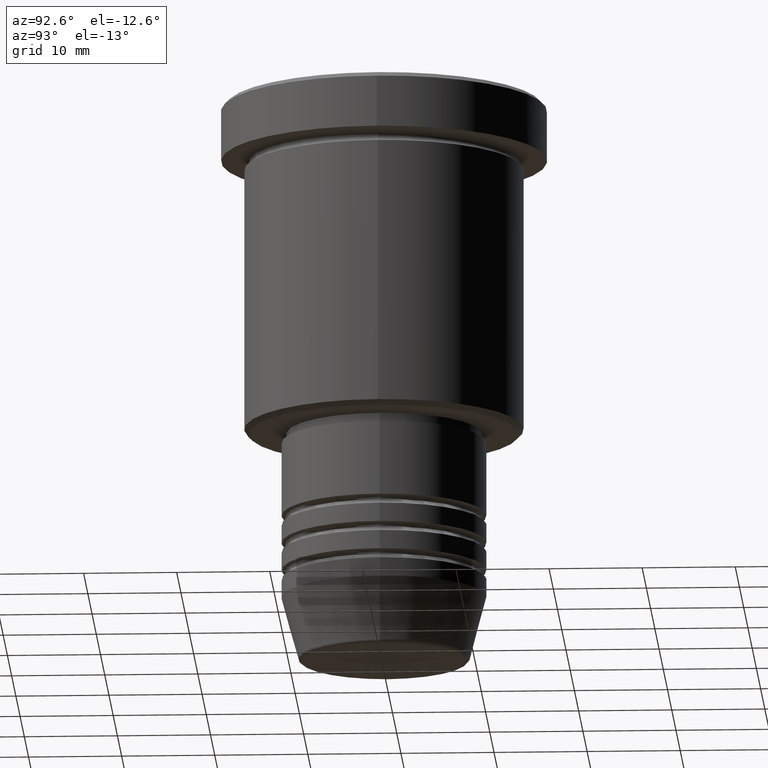
[diagram: clean part render]
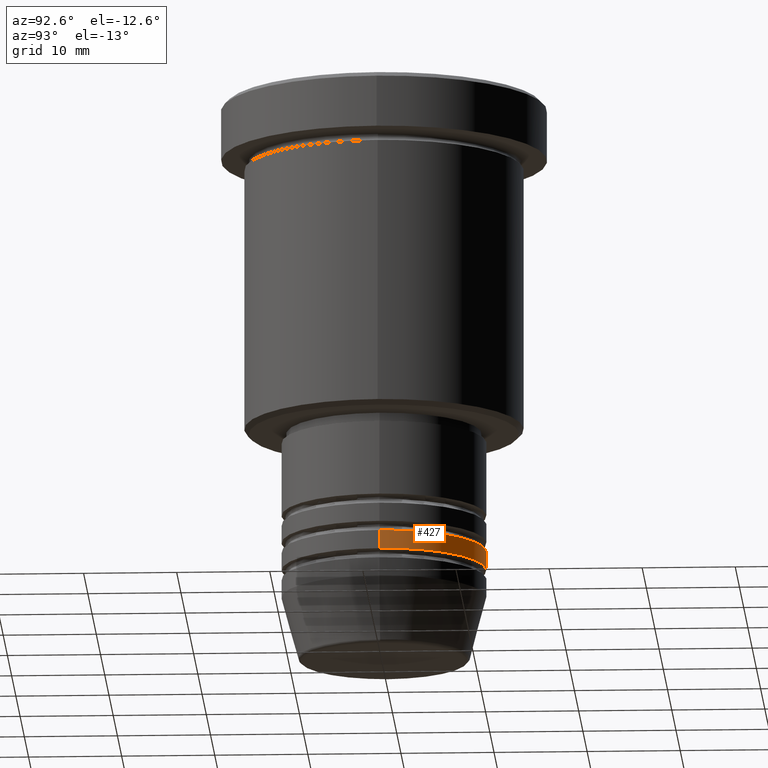
[diagram: same view with one face highlighted and labeled with its STEP entity id]
A machine part, auxiliary view. The second image highlights one B-rep face of the part: STEP entity #427.
In plain terms, the highlighted cylindrical surface (partial cylindrical patch) has radius 11 mm, axis along (-0, -0, 1).
Its self-contained STEP definition (entity closure, byte-faithful):
#66 = DIRECTION ( 'NONE',  ( -0.000000000000000000, -0.000000000000000000, 1.000000000000000000 ) ) ;
#81 = CIRCLE ( 'NONE', #752, 11.00000000000000000 ) ;
#126 = CARTESIAN_POINT ( 'NONE',  ( -11.00000000000000000, 1.347111479062088405E-15, -50.99999999999997868 ) ) ;
#145 = DIRECTION ( 'NONE',  ( 1.000000000000000000, 0.000000000000000000, 0.000000000000000000 ) ) ;
#147 = ORIENTED_EDGE ( 'NONE', *, *, #277, .F. ) ;
#166 = ORIENTED_EDGE ( 'NONE', *, *, #191, .T. ) ;
#191 = EDGE_CURVE ( 'NONE', #822, #572, #729, .T. ) ;
#207 = CARTESIAN_POINT ( 'NONE',  ( 11.00000000000000000, 0.000000000000000000, -50.99999999999997868 ) ) ;
#256 = CARTESIAN_POINT ( 'NONE',  ( 0.000000000000000000, 0.000000000000000000, -48.99999999999997158 ) ) ;
#260 = AXIS2_PLACEMENT_3D ( 'NONE', #918, #593, #1029 ) ;
#277 = EDGE_CURVE ( 'NONE', #969, #572, #293, .T. ) ;
#287 = DIRECTION ( 'NONE',  ( -0.000000000000000000, -0.000000000000000000, 1.000000000000000000 ) ) ;
#293 = CIRCLE ( 'NONE', #487, 11.00000000000000000 ) ;
#353 = VERTEX_POINT ( 'NONE', #207 ) ;
#376 = FACE_OUTER_BOUND ( 'NONE', #483, .T. ) ;
#427 = ADVANCED_FACE ( 'NONE', ( #376 ), #1003, .T. ) ;
#470 = VECTOR ( 'NONE', #1137, 1000.000000000000000 ) ;
#483 = EDGE_LOOP ( 'NONE', ( #892, #166, #147, #599 ) ) ;
#487 = AXIS2_PLACEMENT_3D ( 'NONE', #256, #66, #618 ) ;
#572 = VERTEX_POINT ( 'NONE', #840 ) ;
#593 = DIRECTION ( 'NONE',  ( -0.000000000000000000, -0.000000000000000000, 1.000000000000000000 ) ) ;
#599 = ORIENTED_EDGE ( 'NONE', *, *, #1045, .F. ) ;
#618 = DIRECTION ( 'NONE',  ( 1.000000000000000000, 0.000000000000000000, 0.000000000000000000 ) ) ;
#619 = CARTESIAN_POINT ( 'NONE',  ( 11.00000000000000000, 0.000000000000000000, 0.000000000000000000 ) ) ;
#647 = CARTESIAN_POINT ( 'NONE',  ( 11.00000000000000000, 0.000000000000000000, -48.99999999999997158 ) ) ;
#684 = DIRECTION ( 'NONE',  ( -0.000000000000000000, -0.000000000000000000, 1.000000000000000000 ) ) ;
#729 = LINE ( 'NONE', #1094, #753 ) ;
#752 = AXIS2_PLACEMENT_3D ( 'NONE', #900, #684, #145 ) ;
#753 = VECTOR ( 'NONE', #287, 1000.000000000000000 ) ;
#822 = VERTEX_POINT ( 'NONE', #126 ) ;
#840 = CARTESIAN_POINT ( 'NONE',  ( -11.00000000000000000, 1.347111479062088405E-15, -48.99999999999997158 ) ) ;
#892 = ORIENTED_EDGE ( 'NONE', *, *, #1054, .T. ) ;
#900 = CARTESIAN_POINT ( 'NONE',  ( 0.000000000000000000, 0.000000000000000000, -50.99999999999997868 ) ) ;
#918 = CARTESIAN_POINT ( 'NONE',  ( 0.000000000000000000, 0.000000000000000000, 0.000000000000000000 ) ) ;
#969 = VERTEX_POINT ( 'NONE', #647 ) ;
#1003 = CYLINDRICAL_SURFACE ( 'NONE', #260, 11.00000000000000000 ) ;
#1029 = DIRECTION ( 'NONE',  ( 1.000000000000000000, 0.000000000000000000, 0.000000000000000000 ) ) ;
#1045 = EDGE_CURVE ( 'NONE', #353, #969, #1069, .T. ) ;
#1054 = EDGE_CURVE ( 'NONE', #353, #822, #81, .T. ) ;
#1069 = LINE ( 'NONE', #619, #470 ) ;
#1094 = CARTESIAN_POINT ( 'NONE',  ( -11.00000000000000000, 1.347111479062088405E-15, 0.000000000000000000 ) ) ;
#1137 = DIRECTION ( 'NONE',  ( -0.000000000000000000, -0.000000000000000000, 1.000000000000000000 ) ) ;